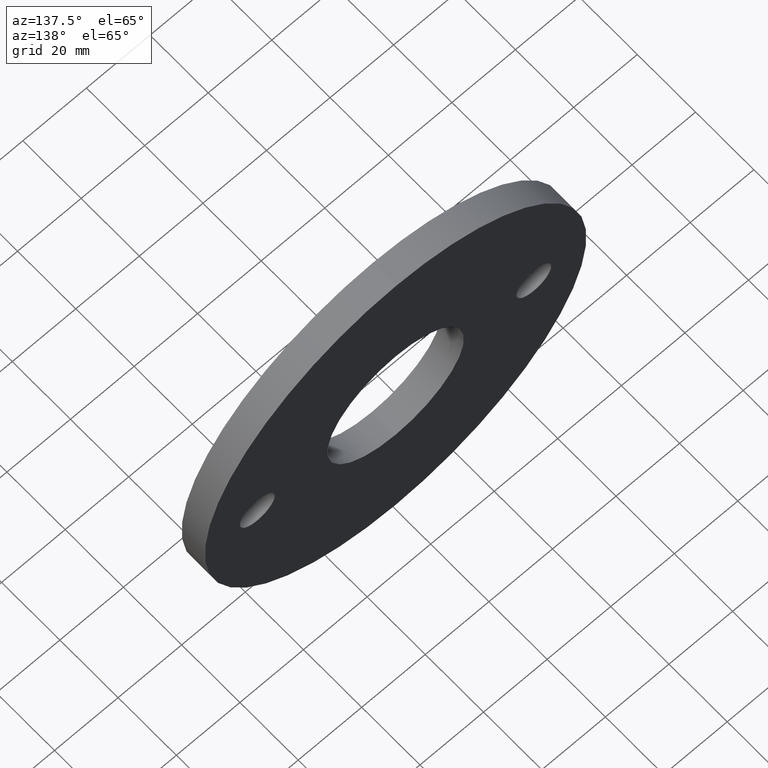
[diagram: clean part render]
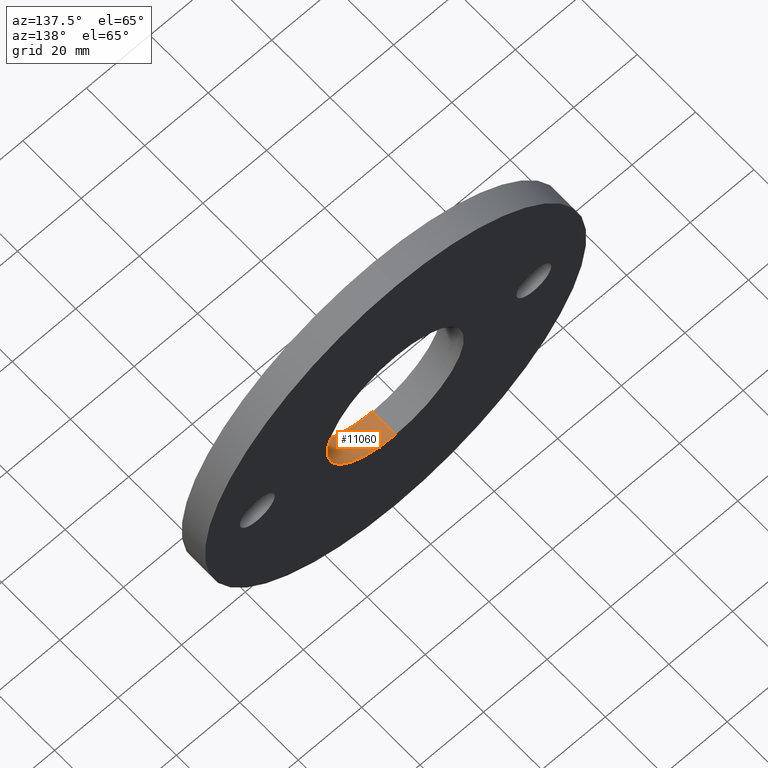
[diagram: same view with one face highlighted and labeled with its STEP entity id]
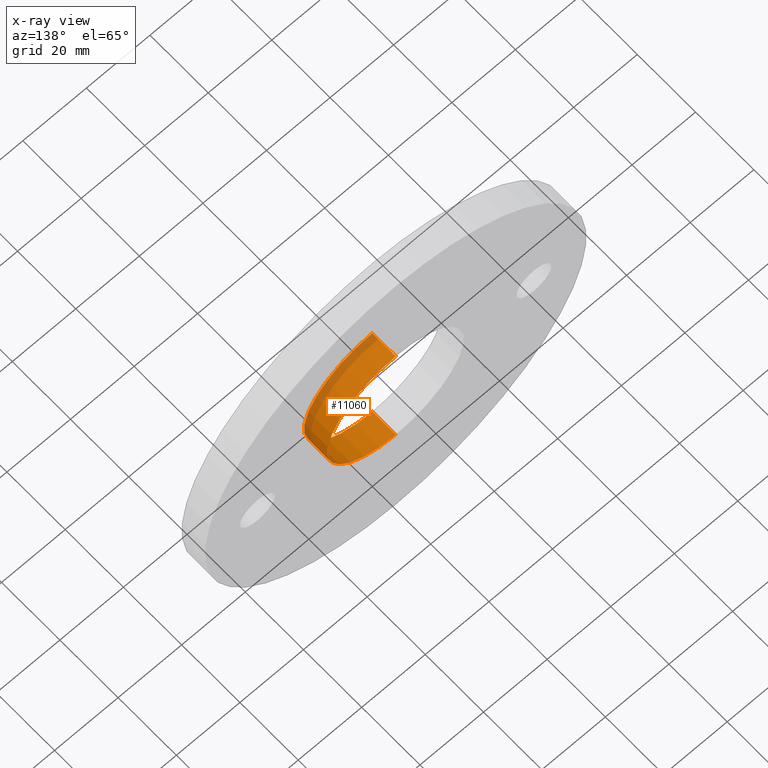
[diagram: x-ray of the same camera — body ghosted, the highlighted face saturated]
A machine part, auxiliary view. The second image highlights one B-rep face of the part: STEP entity #11060.
The next image is the same camera in x-ray: the body ghosted, the highlighted face saturated — about 17% of this face is hidden behind the body in this view.
In plain terms, the highlighted cylindrical surface (partial cylindrical patch) has radius 21.5 mm, axis along (-0, 1, -0).
Its self-contained STEP definition (entity closure, byte-faithful):
#75 = CYLINDRICAL_SURFACE ( 'NONE', #6762, 21.50000000000000000 ) ;
#256 = ORIENTED_EDGE ( 'NONE', *, *, #3231, .T. ) ;
#546 = AXIS2_PLACEMENT_3D ( 'NONE', #9963, #8938, #3327 ) ;
#1409 = DIRECTION ( 'NONE',  ( 0.0000000000000000000, 1.000000000000000000, 0.0000000000000000000 ) ) ;
#1431 = DIRECTION ( 'NONE',  ( -0.0000000000000000000, 1.000000000000000000, -0.0000000000000000000 ) ) ;
#1745 = CIRCLE ( 'NONE', #6396, 21.50000000000000000 ) ;
#2003 = LINE ( 'NONE', #9484, #8806 ) ;
#2213 = CARTESIAN_POINT ( 'NONE',  ( 0.0000000000000000000, 8.000000000000000000, 0.0000000000000000000 ) ) ;
#2265 = FACE_OUTER_BOUND ( 'NONE', #5759, .T. ) ;
#2631 = CARTESIAN_POINT ( 'NONE',  ( 0.0000000000000000000, 0.0000000000000000000, 21.50000000000000000 ) ) ;
#2869 = CARTESIAN_POINT ( 'NONE',  ( 2.632990618166809200E-015, 8.000000000000000000, -21.50000000000000000 ) ) ;
#3231 = EDGE_CURVE ( 'NONE', #4064, #9614, #7563, .T. ) ;
#3327 = DIRECTION ( 'NONE',  ( 0.0000000000000000000, 0.0000000000000000000, 1.000000000000000000 ) ) ;
#3623 = DIRECTION ( 'NONE',  ( -0.0000000000000000000, 1.000000000000000000, -0.0000000000000000000 ) ) ;
#3683 = EDGE_CURVE ( 'NONE', #9614, #10538, #1745, .T. ) ;
#3686 = ORIENTED_EDGE ( 'NONE', *, *, #8953, .F. ) ;
#3767 = CARTESIAN_POINT ( 'NONE',  ( 0.0000000000000000000, 8.000000000000000000, 21.50000000000000000 ) ) ;
#4064 = VERTEX_POINT ( 'NONE', #4700 ) ;
#4505 = CARTESIAN_POINT ( 'NONE',  ( 0.0000000000000000000, 0.0000000000000000000, 0.0000000000000000000 ) ) ;
#4700 = CARTESIAN_POINT ( 'NONE',  ( 0.0000000000000000000, 0.0000000000000000000, 21.50000000000000000 ) ) ;
#5299 = ORIENTED_EDGE ( 'NONE', *, *, #3683, .T. ) ;
#5759 = EDGE_LOOP ( 'NONE', ( #3686, #11309, #256, #5299 ) ) ;
#6396 = AXIS2_PLACEMENT_3D ( 'NONE', #2213, #1409, #9857 ) ;
#6762 = AXIS2_PLACEMENT_3D ( 'NONE', #4505, #8469, #11368 ) ;
#7563 = LINE ( 'NONE', #2631, #10081 ) ;
#7616 = CIRCLE ( 'NONE', #546, 21.50000000000000000 ) ;
#8469 = DIRECTION ( 'NONE',  ( -0.0000000000000000000, 1.000000000000000000, -0.0000000000000000000 ) ) ;
#8500 = CARTESIAN_POINT ( 'NONE',  ( 2.632990618166809200E-015, 0.0000000000000000000, -21.50000000000000000 ) ) ;
#8620 = EDGE_CURVE ( 'NONE', #4064, #12145, #7616, .T. ) ;
#8806 = VECTOR ( 'NONE', #1431, 1000.000000000000000 ) ;
#8938 = DIRECTION ( 'NONE',  ( 0.0000000000000000000, 1.000000000000000000, 0.0000000000000000000 ) ) ;
#8953 = EDGE_CURVE ( 'NONE', #12145, #10538, #2003, .T. ) ;
#9484 = CARTESIAN_POINT ( 'NONE',  ( 2.632990618166809200E-015, 0.0000000000000000000, -21.50000000000000000 ) ) ;
#9614 = VERTEX_POINT ( 'NONE', #3767 ) ;
#9857 = DIRECTION ( 'NONE',  ( 0.0000000000000000000, 0.0000000000000000000, 1.000000000000000000 ) ) ;
#9963 = CARTESIAN_POINT ( 'NONE',  ( 0.0000000000000000000, 0.0000000000000000000, 0.0000000000000000000 ) ) ;
#10081 = VECTOR ( 'NONE', #3623, 1000.000000000000000 ) ;
#10538 = VERTEX_POINT ( 'NONE', #2869 ) ;
#11060 = ADVANCED_FACE ( 'NONE', ( #2265 ), #75, .F. ) ;
#11309 = ORIENTED_EDGE ( 'NONE', *, *, #8620, .F. ) ;
#11368 = DIRECTION ( 'NONE',  ( 0.0000000000000000000, 0.0000000000000000000, 1.000000000000000000 ) ) ;
#12145 = VERTEX_POINT ( 'NONE', #8500 ) ;